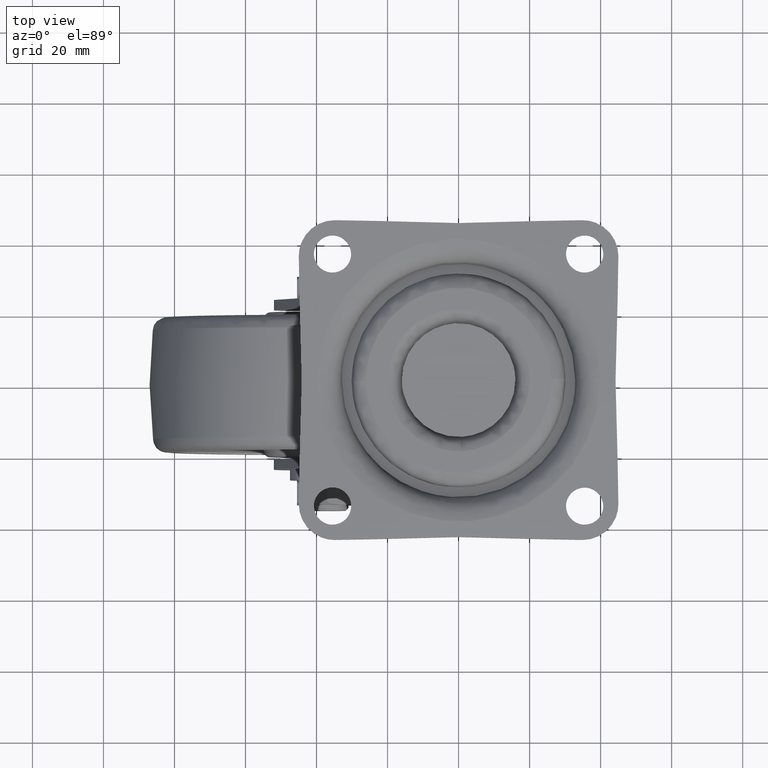
[diagram: clean part render]
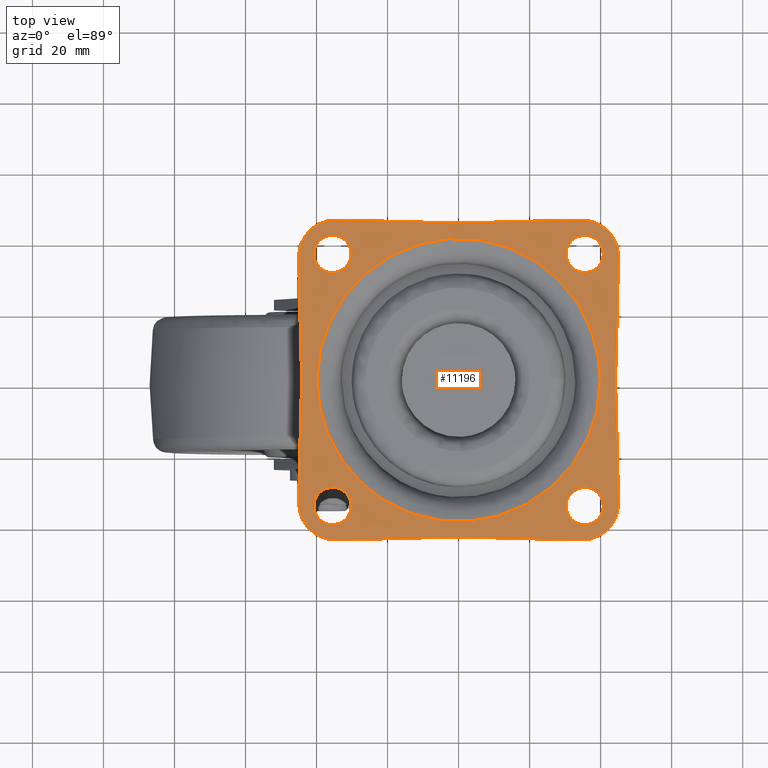
[diagram: same view with one face highlighted and labeled with its STEP entity id]
A machine part, top view. The second image highlights one B-rep face of the part: STEP entity #11196.
In plain terms, the highlighted face is a freeform B-spline surface patch.
Its self-contained STEP definition (entity closure, byte-faithful):
#8173=CARTESIAN_POINT('',(-35.820504832895317,30.259792308305830,-8.326673E-017));
#8174=VERTEX_POINT('',#8173);
#8175=CARTESIAN_POINT('',(-30.250000000000000,35.500000000000000,0.0));
#8176=VERTEX_POINT('',#8175);
#8177=CARTESIAN_POINT('',(-35.820504832895331,30.259792308305819,0.0));
#8178=CARTESIAN_POINT('',(-35.660402007486731,30.249999999999993,0.0));
#8179=CARTESIAN_POINT('',(-35.500000000000000,30.250000000000000,0.0));
#8180=CARTESIAN_POINT('',(-30.249999999999986,30.249999999999986,0.0));
#8181=CARTESIAN_POINT('',(-30.250000000000000,35.500000000000000,0.0));
#8189=(BOUNDED_CURVE()B_SPLINE_CURVE(2,(#8177,#8178,#8179,#8180,#8181),.UNSPECIFIED.,.F.,.U.)B_SPLINE_CURVE_WITH_KNOTS((3,2,3),(0.239332962230861,0.250000000000000,0.500000000000000),.UNSPECIFIED.)CURVE()GEOMETRIC_REPRESENTATION_ITEM()RATIONAL_B_SPLINE_CURVE((0.976072041649397,0.987502787890369,1.0,0.707106781186547,1.0))REPRESENTATION_ITEM(''));
#8190=EDGE_CURVE('',#8174,#8176,#8189,.T.);
#8192=CARTESIAN_POINT('',(-35.179495167104683,40.740207691694167,-8.326673E-017));
#8193=VERTEX_POINT('',#8192);
#8194=CARTESIAN_POINT('',(-30.250000000000000,35.500000000000000,0.0));
#8195=CARTESIAN_POINT('',(-30.249999999999993,40.438706850936384,0.0));
#8196=CARTESIAN_POINT('',(-35.179495167104683,40.740207691694160,0.0));
#8204=(BOUNDED_CURVE()B_SPLINE_CURVE(2,(#8194,#8195,#8196),.UNSPECIFIED.,.F.,.U.)B_SPLINE_CURVE_WITH_KNOTS((3,3),(0.500000000000000,0.739332962230861),.UNSPECIFIED.)CURVE()GEOMETRIC_REPRESENTATION_ITEM()RATIONAL_B_SPLINE_CURVE((1.0,0.719603993296179,0.976072041649397))REPRESENTATION_ITEM(''));
#8205=EDGE_CURVE('',#8176,#8193,#8204,.T.);
#8272=CARTESIAN_POINT('',(-40.749999999999993,35.500000000000000,0.0));
#8273=VERTEX_POINT('',#8272);
#8274=CARTESIAN_POINT('',(-40.749999999999993,35.500000000000000,0.0));
#8275=CARTESIAN_POINT('',(-40.749999999999986,30.561293149063609,0.0));
#8276=CARTESIAN_POINT('',(-35.820504832895331,30.259792308305830,0.0));
#8284=(BOUNDED_CURVE()B_SPLINE_CURVE(2,(#8274,#8275,#8276),.UNSPECIFIED.,.F.,.U.)B_SPLINE_CURVE_WITH_KNOTS((3,3),(0.0,0.239332962230861),.UNSPECIFIED.)CURVE()GEOMETRIC_REPRESENTATION_ITEM()RATIONAL_B_SPLINE_CURVE((1.0,0.719603993296179,0.976072041649397))REPRESENTATION_ITEM(''));
#8285=EDGE_CURVE('',#8273,#8174,#8284,.T.);
#8319=CARTESIAN_POINT('',(-35.179495167104676,40.740207691694160,0.0));
#8320=CARTESIAN_POINT('',(-35.339597992513276,40.750000000000000,0.0));
#8321=CARTESIAN_POINT('',(-35.500000000000000,40.749999999999993,0.0));
#8322=CARTESIAN_POINT('',(-40.749999999999986,40.749999999999986,0.0));
#8323=CARTESIAN_POINT('',(-40.749999999999993,35.500000000000000,0.0));
#8331=(BOUNDED_CURVE()B_SPLINE_CURVE(2,(#8319,#8320,#8321,#8322,#8323),.UNSPECIFIED.,.F.,.U.)B_SPLINE_CURVE_WITH_KNOTS((3,2,3),(0.739332962230861,0.750000000000000,1.0),.UNSPECIFIED.)CURVE()GEOMETRIC_REPRESENTATION_ITEM()RATIONAL_B_SPLINE_CURVE((0.976072041649397,0.987502787890369,1.0,0.707106781186547,1.0))REPRESENTATION_ITEM(''));
#8332=EDGE_CURVE('',#8193,#8273,#8331,.T.);
#8355=CARTESIAN_POINT('',(35.179495167104669,30.259792308305830,-8.326673E-017));
#8356=VERTEX_POINT('',#8355);
#8357=CARTESIAN_POINT('',(40.749999999999993,35.500000000000000,0.0));
#8358=VERTEX_POINT('',#8357);
#8359=CARTESIAN_POINT('',(35.179495167104676,30.259792308305826,0.0));
#8360=CARTESIAN_POINT('',(35.339597992513269,30.250000000000004,0.0));
#8361=CARTESIAN_POINT('',(35.500000000000000,30.250000000000000,0.0));
#8362=CARTESIAN_POINT('',(40.749999999999986,30.249999999999986,0.0));
#8363=CARTESIAN_POINT('',(40.749999999999993,35.500000000000000,0.0));
#8371=(BOUNDED_CURVE()B_SPLINE_CURVE(2,(#8359,#8360,#8361,#8362,#8363),.UNSPECIFIED.,.F.,.U.)B_SPLINE_CURVE_WITH_KNOTS((3,2,3),(0.239332962230861,0.250000000000000,0.500000000000000),.UNSPECIFIED.)CURVE()GEOMETRIC_REPRESENTATION_ITEM()RATIONAL_B_SPLINE_CURVE((0.976072041649396,0.987502787890368,1.0,0.707106781186547,1.0))REPRESENTATION_ITEM(''));
#8372=EDGE_CURVE('',#8356,#8358,#8371,.T.);
#8374=CARTESIAN_POINT('',(35.820504832895317,40.740207691694167,-8.326673E-017));
#8375=VERTEX_POINT('',#8374);
#8376=CARTESIAN_POINT('',(40.749999999999993,35.500000000000000,0.0));
#8377=CARTESIAN_POINT('',(40.749999999999986,40.438706850936384,0.0));
#8378=CARTESIAN_POINT('',(35.820504832895331,40.740207691694160,0.0));
#8386=(BOUNDED_CURVE()B_SPLINE_CURVE(2,(#8376,#8377,#8378),.UNSPECIFIED.,.F.,.U.)B_SPLINE_CURVE_WITH_KNOTS((3,3),(0.500000000000000,0.739332962230861),.UNSPECIFIED.)CURVE()GEOMETRIC_REPRESENTATION_ITEM()RATIONAL_B_SPLINE_CURVE((1.0,0.719603993296179,0.976072041649397))REPRESENTATION_ITEM(''));
#8387=EDGE_CURVE('',#8358,#8375,#8386,.T.);
#8454=CARTESIAN_POINT('',(30.250000000000000,35.500000000000000,0.0));
#8455=VERTEX_POINT('',#8454);
#8456=CARTESIAN_POINT('',(30.250000000000000,35.500000000000000,0.0));
#8457=CARTESIAN_POINT('',(30.249999999999982,30.561293149063612,0.0));
#8458=CARTESIAN_POINT('',(35.179495167104676,30.259792308305833,0.0));
#8466=(BOUNDED_CURVE()B_SPLINE_CURVE(2,(#8456,#8457,#8458),.UNSPECIFIED.,.F.,.U.)B_SPLINE_CURVE_WITH_KNOTS((3,3),(0.0,0.239332962230861),.UNSPECIFIED.)CURVE()GEOMETRIC_REPRESENTATION_ITEM()RATIONAL_B_SPLINE_CURVE((1.0,0.719603993296179,0.976072041649396))REPRESENTATION_ITEM(''));
#8467=EDGE_CURVE('',#8455,#8356,#8466,.T.);
#8501=CARTESIAN_POINT('',(35.820504832895331,40.740207691694160,0.0));
#8502=CARTESIAN_POINT('',(35.660402007486731,40.749999999999993,0.0));
#8503=CARTESIAN_POINT('',(35.500000000000000,40.749999999999993,0.0));
#8504=CARTESIAN_POINT('',(30.249999999999986,40.749999999999986,0.0));
#8505=CARTESIAN_POINT('',(30.250000000000000,35.500000000000000,0.0));
#8513=(BOUNDED_CURVE()B_SPLINE_CURVE(2,(#8501,#8502,#8503,#8504,#8505),.UNSPECIFIED.,.F.,.U.)B_SPLINE_CURVE_WITH_KNOTS((3,2,3),(0.739332962230861,0.750000000000000,1.0),.UNSPECIFIED.)CURVE()GEOMETRIC_REPRESENTATION_ITEM()RATIONAL_B_SPLINE_CURVE((0.976072041649397,0.987502787890369,1.0,0.707106781186547,1.0))REPRESENTATION_ITEM(''));
#8514=EDGE_CURVE('',#8375,#8455,#8513,.T.);
#8537=CARTESIAN_POINT('',(-35.820504832895317,-40.740207691694167,-8.326673E-017));
#8538=VERTEX_POINT('',#8537);
#8539=CARTESIAN_POINT('',(-30.250000000000000,-35.500000000000000,0.0));
#8540=VERTEX_POINT('',#8539);
#8541=CARTESIAN_POINT('',(-35.820504832895331,-40.740207691694160,0.0));
#8542=CARTESIAN_POINT('',(-35.660402007486717,-40.749999999999986,0.0));
#8543=CARTESIAN_POINT('',(-35.500000000000000,-40.749999999999993,0.0));
#8544=CARTESIAN_POINT('',(-30.249999999999986,-40.749999999999986,0.0));
#8545=CARTESIAN_POINT('',(-30.250000000000000,-35.500000000000000,0.0));
#8553=(BOUNDED_CURVE()B_SPLINE_CURVE(2,(#8541,#8542,#8543,#8544,#8545),.UNSPECIFIED.,.F.,.U.)B_SPLINE_CURVE_WITH_KNOTS((3,2,3),(0.239332962230861,0.250000000000000,0.500000000000000),.UNSPECIFIED.)CURVE()GEOMETRIC_REPRESENTATION_ITEM()RATIONAL_B_SPLINE_CURVE((0.976072041649397,0.987502787890369,1.0,0.707106781186547,1.0))REPRESENTATION_ITEM(''));
#8554=EDGE_CURVE('',#8538,#8540,#8553,.T.);
#8556=CARTESIAN_POINT('',(-35.179495167104683,-30.259792308305830,-8.326673E-017));
#8557=VERTEX_POINT('',#8556);
#8558=CARTESIAN_POINT('',(-30.250000000000000,-35.500000000000000,0.0));
#8559=CARTESIAN_POINT('',(-30.249999999999993,-30.561293149063609,0.0));
#8560=CARTESIAN_POINT('',(-35.179495167104683,-30.259792308305830,0.0));
#8568=(BOUNDED_CURVE()B_SPLINE_CURVE(2,(#8558,#8559,#8560),.UNSPECIFIED.,.F.,.U.)B_SPLINE_CURVE_WITH_KNOTS((3,3),(0.500000000000000,0.739332962230861),.UNSPECIFIED.)CURVE()GEOMETRIC_REPRESENTATION_ITEM()RATIONAL_B_SPLINE_CURVE((1.0,0.719603993296179,0.976072041649397))REPRESENTATION_ITEM(''));
#8569=EDGE_CURVE('',#8540,#8557,#8568,.T.);
#8636=CARTESIAN_POINT('',(-40.749999999999993,-35.500000000000000,0.0));
#8637=VERTEX_POINT('',#8636);
#8638=CARTESIAN_POINT('',(-40.749999999999993,-35.500000000000000,0.0));
#8639=CARTESIAN_POINT('',(-40.749999999999986,-40.438706850936370,0.0));
#8640=CARTESIAN_POINT('',(-35.820504832895338,-40.740207691694167,0.0));
#8648=(BOUNDED_CURVE()B_SPLINE_CURVE(2,(#8638,#8639,#8640),.UNSPECIFIED.,.F.,.U.)B_SPLINE_CURVE_WITH_KNOTS((3,3),(0.0,0.239332962230861),.UNSPECIFIED.)CURVE()GEOMETRIC_REPRESENTATION_ITEM()RATIONAL_B_SPLINE_CURVE((1.0,0.719603993296179,0.976072041649396))REPRESENTATION_ITEM(''));
#8649=EDGE_CURVE('',#8637,#8538,#8648,.T.);
#8683=CARTESIAN_POINT('',(-35.179495167104676,-30.259792308305823,0.0));
#8684=CARTESIAN_POINT('',(-35.339597992513276,-30.250000000000000,0.0));
#8685=CARTESIAN_POINT('',(-35.500000000000000,-30.250000000000000,0.0));
#8686=CARTESIAN_POINT('',(-40.749999999999986,-30.249999999999986,0.0));
#8687=CARTESIAN_POINT('',(-40.749999999999993,-35.500000000000000,0.0));
#8695=(BOUNDED_CURVE()B_SPLINE_CURVE(2,(#8683,#8684,#8685,#8686,#8687),.UNSPECIFIED.,.F.,.U.)B_SPLINE_CURVE_WITH_KNOTS((3,2,3),(0.739332962230861,0.750000000000000,1.0),.UNSPECIFIED.)CURVE()GEOMETRIC_REPRESENTATION_ITEM()RATIONAL_B_SPLINE_CURVE((0.976072041649397,0.987502787890369,1.0,0.707106781186547,1.0))REPRESENTATION_ITEM(''));
#8696=EDGE_CURVE('',#8557,#8637,#8695,.T.);
#8719=CARTESIAN_POINT('',(35.179495167104669,-40.740207691694167,-8.326673E-017));
#8720=VERTEX_POINT('',#8719);
#8721=CARTESIAN_POINT('',(40.749999999999993,-35.500000000000000,0.0));
#8722=VERTEX_POINT('',#8721);
#8723=CARTESIAN_POINT('',(35.179495167104655,-40.740207691694167,0.0));
#8724=CARTESIAN_POINT('',(35.339597992513262,-40.749999999999986,0.0));
#8725=CARTESIAN_POINT('',(35.500000000000000,-40.749999999999993,0.0));
#8726=CARTESIAN_POINT('',(40.749999999999986,-40.749999999999986,0.0));
#8727=CARTESIAN_POINT('',(40.749999999999993,-35.500000000000000,0.0));
#8735=(BOUNDED_CURVE()B_SPLINE_CURVE(2,(#8723,#8724,#8725,#8726,#8727),.UNSPECIFIED.,.F.,.U.)B_SPLINE_CURVE_WITH_KNOTS((3,2,3),(0.239332962230861,0.250000000000000,0.500000000000000),.UNSPECIFIED.)CURVE()GEOMETRIC_REPRESENTATION_ITEM()RATIONAL_B_SPLINE_CURVE((0.976072041649396,0.987502787890369,1.0,0.707106781186547,1.0))REPRESENTATION_ITEM(''));
#8736=EDGE_CURVE('',#8720,#8722,#8735,.T.);
#8738=CARTESIAN_POINT('',(35.820504832895317,-30.259792308305830,-8.326673E-017));
#8739=VERTEX_POINT('',#8738);
#8740=CARTESIAN_POINT('',(40.749999999999993,-35.500000000000000,0.0));
#8741=CARTESIAN_POINT('',(40.749999999999986,-30.561293149063609,0.0));
#8742=CARTESIAN_POINT('',(35.820504832895331,-30.259792308305830,0.0));
#8750=(BOUNDED_CURVE()B_SPLINE_CURVE(2,(#8740,#8741,#8742),.UNSPECIFIED.,.F.,.U.)B_SPLINE_CURVE_WITH_KNOTS((3,3),(0.500000000000000,0.739332962230861),.UNSPECIFIED.)CURVE()GEOMETRIC_REPRESENTATION_ITEM()RATIONAL_B_SPLINE_CURVE((1.0,0.719603993296179,0.976072041649397))REPRESENTATION_ITEM(''));
#8751=EDGE_CURVE('',#8722,#8739,#8750,.T.);
#8818=CARTESIAN_POINT('',(30.250000000000000,-35.500000000000000,0.0));
#8819=VERTEX_POINT('',#8818);
#8820=CARTESIAN_POINT('',(30.250000000000000,-35.500000000000000,0.0));
#8821=CARTESIAN_POINT('',(30.249999999999982,-40.438706850936370,0.0));
#8822=CARTESIAN_POINT('',(35.179495167104669,-40.740207691694167,0.0));
#8830=(BOUNDED_CURVE()B_SPLINE_CURVE(2,(#8820,#8821,#8822),.UNSPECIFIED.,.F.,.U.)B_SPLINE_CURVE_WITH_KNOTS((3,3),(0.0,0.239332962230861),.UNSPECIFIED.)CURVE()GEOMETRIC_REPRESENTATION_ITEM()RATIONAL_B_SPLINE_CURVE((1.0,0.719603993296179,0.976072041649396))REPRESENTATION_ITEM(''));
#8831=EDGE_CURVE('',#8819,#8720,#8830,.T.);
#8865=CARTESIAN_POINT('',(35.820504832895331,-30.259792308305830,0.0));
#8866=CARTESIAN_POINT('',(35.660402007486717,-30.250000000000004,0.0));
#8867=CARTESIAN_POINT('',(35.500000000000000,-30.250000000000000,0.0));
#8868=CARTESIAN_POINT('',(30.249999999999986,-30.249999999999986,0.0));
#8869=CARTESIAN_POINT('',(30.250000000000000,-35.500000000000000,0.0));
#8877=(BOUNDED_CURVE()B_SPLINE_CURVE(2,(#8865,#8866,#8867,#8868,#8869),.UNSPECIFIED.,.F.,.U.)B_SPLINE_CURVE_WITH_KNOTS((3,2,3),(0.739332962230861,0.750000000000000,1.0),.UNSPECIFIED.)CURVE()GEOMETRIC_REPRESENTATION_ITEM()RATIONAL_B_SPLINE_CURVE((0.976072041649397,0.987502787890369,1.0,0.707106781186547,1.0))REPRESENTATION_ITEM(''));
#8878=EDGE_CURVE('',#8739,#8819,#8877,.T.);
#10442=CARTESIAN_POINT('',(-22.568438371059951,44.780491321962550,0.0));
#10443=VERTEX_POINT('',#10442);
#10444=CARTESIAN_POINT('',(22.568478716295200,44.780493398808453,0.0));
#10445=VERTEX_POINT('',#10444);
#10446=CARTESIAN_POINT('',(-22.568438371059951,44.780491321962550,0.0));
#10447=CARTESIAN_POINT('',(0.000020226072639,43.618739034718402,0.0));
#10448=CARTESIAN_POINT('',(22.568478716295271,44.780493398808566,0.0));
#10456=(BOUNDED_CURVE()B_SPLINE_CURVE(2,(#10446,#10447,#10448),.UNSPECIFIED.,.F.,.U.)CURVE()GEOMETRIC_REPRESENTATION_ITEM()QUASI_UNIFORM_CURVE()RATIONAL_B_SPLINE_CURVE((1.0,0.998677693939897,1.0))REPRESENTATION_ITEM(''));
#10457=EDGE_CURVE('',#10443,#10445,#10456,.T.);
#10487=CARTESIAN_POINT('',(34.911363045098099,45.000030150011099,0.0));
#10488=VERTEX_POINT('',#10487);
#10489=CARTESIAN_POINT('',(34.911363045098099,45.000030150011099,0.0));
#10490=CARTESIAN_POINT('',(28.736937665468936,45.057985311737355,0.0));
#10491=CARTESIAN_POINT('',(22.568478716295321,44.780493398808460,0.0));
#10499=(BOUNDED_CURVE()B_SPLINE_CURVE(2,(#10489,#10490,#10491),.UNSPECIFIED.,.F.,.U.)CURVE()GEOMETRIC_REPRESENTATION_ITEM()QUASI_UNIFORM_CURVE()RATIONAL_B_SPLINE_CURVE((1.0,0.999630899864189,1.0))REPRESENTATION_ITEM(''));
#10500=EDGE_CURVE('',#10488,#10445,#10499,.T.);
#10526=CARTESIAN_POINT('',(45.000028999266803,34.911485639506601,0.0));
#10527=VERTEX_POINT('',#10526);
#10528=CARTESIAN_POINT('',(45.000028999266767,34.911485639506601,0.0));
#10529=CARTESIAN_POINT('',(44.999907361227322,45.000029954902516,0.0));
#10530=CARTESIAN_POINT('',(34.911363045098099,45.000029999999981,0.0));
#10538=(BOUNDED_CURVE()B_SPLINE_CURVE(2,(#10528,#10529,#10530),.UNSPECIFIED.,.F.,.U.)CURVE()GEOMETRIC_REPRESENTATION_ITEM()QUASI_UNIFORM_CURVE()RATIONAL_B_SPLINE_CURVE((1.0,0.707111045563504,1.0))REPRESENTATION_ITEM(''));
#10539=EDGE_CURVE('',#10527,#10488,#10538,.T.);
#10565=CARTESIAN_POINT('',(44.780491658686650,22.568440034628999,0.0));
#10566=VERTEX_POINT('',#10565);
#10567=CARTESIAN_POINT('',(44.780491658686643,22.568440034628971,0.0));
#10568=CARTESIAN_POINT('',(45.057988250459474,28.736979574832290,0.0));
#10569=CARTESIAN_POINT('',(45.000028999267343,34.911485639506523,0.0));
#10577=(BOUNDED_CURVE()B_SPLINE_CURVE(2,(#10567,#10568,#10569),.UNSPECIFIED.,.F.,.U.)CURVE()GEOMETRIC_REPRESENTATION_ITEM()QUASI_UNIFORM_CURVE()RATIONAL_B_SPLINE_CURVE((1.0,0.999630890219208,1.0))REPRESENTATION_ITEM(''));
#10578=EDGE_CURVE('',#10566,#10527,#10577,.T.);
#10604=CARTESIAN_POINT('',(44.780491321962650,-22.568438371059699,0.0));
#10605=VERTEX_POINT('',#10604);
#10606=CARTESIAN_POINT('',(44.780491658686650,22.568440034628999,0.0));
#10607=CARTESIAN_POINT('',(43.618740032628445,0.000000840451123,0.0));
#10608=CARTESIAN_POINT('',(44.780491321962657,-22.568438371059660,0.0));
#10616=(BOUNDED_CURVE()B_SPLINE_CURVE(2,(#10606,#10607,#10608),.UNSPECIFIED.,.F.,.U.)CURVE()GEOMETRIC_REPRESENTATION_ITEM()QUASI_UNIFORM_CURVE()RATIONAL_B_SPLINE_CURVE((1.0,0.998677696207034,1.0))REPRESENTATION_ITEM(''));
#10617=EDGE_CURVE('',#10566,#10605,#10616,.T.);
#10643=CARTESIAN_POINT('',(45.000030150011298,-34.911363045097751,0.0));
#10644=VERTEX_POINT('',#10643);
#10645=CARTESIAN_POINT('',(45.000030150011362,-34.911363045097723,0.0));
#10646=CARTESIAN_POINT('',(45.057985501462475,-28.736917452536485,0.0));
#10647=CARTESIAN_POINT('',(44.780491583320732,-22.568438359302359,0.0));
#10655=(BOUNDED_CURVE()B_SPLINE_CURVE(2,(#10645,#10646,#10647),.UNSPECIFIED.,.F.,.U.)CURVE()GEOMETRIC_REPRESENTATION_ITEM()QUASI_UNIFORM_CURVE()RATIONAL_B_SPLINE_CURVE((1.0,0.999630897448910,1.0))REPRESENTATION_ITEM(''));
#10656=EDGE_CURVE('',#10644,#10605,#10655,.T.);
#10682=CARTESIAN_POINT('',(34.911485639506701,-45.000028999266803,0.0));
#10683=VERTEX_POINT('',#10682);
#10684=CARTESIAN_POINT('',(34.911485639506701,-45.000028999266767,0.0));
#10685=CARTESIAN_POINT('',(45.000029954902956,-44.999907361227322,0.0));
#10686=CARTESIAN_POINT('',(45.000030000000081,-34.911363045097751,0.0));
#10694=(BOUNDED_CURVE()B_SPLINE_CURVE(2,(#10684,#10685,#10686),.UNSPECIFIED.,.F.,.U.)CURVE()GEOMETRIC_REPRESENTATION_ITEM()QUASI_UNIFORM_CURVE()RATIONAL_B_SPLINE_CURVE((1.0,0.707111045563492,1.0))REPRESENTATION_ITEM(''));
#10695=EDGE_CURVE('',#10683,#10644,#10694,.T.);
#10721=CARTESIAN_POINT('',(22.568478716295200,-44.780493398808453,0.0));
#10722=VERTEX_POINT('',#10721);
#10723=CARTESIAN_POINT('',(22.568478716295221,-44.780493398808439,0.0));
#10724=CARTESIAN_POINT('',(28.736998948672429,-45.057988068599869,0.0));
#10725=CARTESIAN_POINT('',(34.911485639506587,-45.000028999267343,0.0));
#10733=(BOUNDED_CURVE()B_SPLINE_CURVE(2,(#10723,#10724,#10725),.UNSPECIFIED.,.F.,.U.)CURVE()GEOMETRIC_REPRESENTATION_ITEM()QUASI_UNIFORM_CURVE()RATIONAL_B_SPLINE_CURVE((1.0,0.999630892534245,1.0))REPRESENTATION_ITEM(''));
#10734=EDGE_CURVE('',#10722,#10683,#10733,.T.);
#10760=CARTESIAN_POINT('',(-22.568438371060299,-44.780491321962650,0.0));
#10761=VERTEX_POINT('',#10760);
#10762=CARTESIAN_POINT('',(22.568478716295200,-44.780493398808453,0.0));
#10763=CARTESIAN_POINT('',(0.000020226073122,-43.618739034718409,0.0));
#10764=CARTESIAN_POINT('',(-22.568438371060079,-44.780491321962707,0.0));
#10772=(BOUNDED_CURVE()B_SPLINE_CURVE(2,(#10762,#10763,#10764),.UNSPECIFIED.,.F.,.U.)CURVE()GEOMETRIC_REPRESENTATION_ITEM()QUASI_UNIFORM_CURVE()RATIONAL_B_SPLINE_CURVE((1.0,0.998677693939897,1.0))REPRESENTATION_ITEM(''));
#10773=EDGE_CURVE('',#10722,#10761,#10772,.T.);
#10799=CARTESIAN_POINT('',(-34.911485639506701,-45.000028999267307,0.0));
#10800=VERTEX_POINT('',#10799);
#10801=CARTESIAN_POINT('',(-34.911485639506672,-45.000028999267343,0.0));
#10802=CARTESIAN_POINT('',(-28.736978735739843,-45.057988258335932,0.0));
#10803=CARTESIAN_POINT('',(-22.568438359302789,-44.780491583320760,0.0));
#10811=(BOUNDED_CURVE()B_SPLINE_CURVE(2,(#10801,#10802,#10803),.UNSPECIFIED.,.F.,.U.)CURVE()GEOMETRIC_REPRESENTATION_ITEM()QUASI_UNIFORM_CURVE()RATIONAL_B_SPLINE_CURVE((1.0,0.999630890118942,1.0))REPRESENTATION_ITEM(''));
#10812=EDGE_CURVE('',#10800,#10761,#10811,.T.);
#10838=CARTESIAN_POINT('',(-45.000030000000002,-34.911363000000101,0.0));
#10839=VERTEX_POINT('',#10838);
#10840=CARTESIAN_POINT('',(-45.000030000000031,-34.911363000000101,0.0));
#10841=CARTESIAN_POINT('',(-45.000030000000031,-44.999907361226732,0.0));
#10842=CARTESIAN_POINT('',(-34.911485639506687,-45.000028999266767,0.0));
#10850=(BOUNDED_CURVE()B_SPLINE_CURVE(2,(#10840,#10841,#10842),.UNSPECIFIED.,.F.,.U.)CURVE()GEOMETRIC_REPRESENTATION_ITEM()QUASI_UNIFORM_CURVE()RATIONAL_B_SPLINE_CURVE((1.0,0.707111043983073,1.0))REPRESENTATION_ITEM(''));
#10851=EDGE_CURVE('',#10839,#10800,#10850,.T.);
#10877=CARTESIAN_POINT('',(-44.780491658686650,-22.568440034629049,0.0));
#10878=VERTEX_POINT('',#10877);
#10879=CARTESIAN_POINT('',(-44.780491658686643,-22.568440034629049,0.0));
#10880=CARTESIAN_POINT('',(-45.057985492604097,-28.736918269790980,0.0));
#10881=CARTESIAN_POINT('',(-45.000030150421402,-34.911363001411992,0.0));
#10889=(BOUNDED_CURVE()B_SPLINE_CURVE(2,(#10879,#10880,#10881),.UNSPECIFIED.,.F.,.U.)CURVE()GEOMETRIC_REPRESENTATION_ITEM()QUASI_UNIFORM_CURVE()RATIONAL_B_SPLINE_CURVE((1.0,0.999630897551787,1.0))REPRESENTATION_ITEM(''));
#10890=EDGE_CURVE('',#10878,#10839,#10889,.T.);
#10916=CARTESIAN_POINT('',(-44.780491321962650,22.568438371060150,0.0));
#10917=VERTEX_POINT('',#10916);
#10918=CARTESIAN_POINT('',(-44.780491658686650,-22.568440034629049,0.0));
#10919=CARTESIAN_POINT('',(-43.618740032628445,-0.000000840451363,0.0));
#10920=CARTESIAN_POINT('',(-44.780491321962707,22.568438371060111,0.0));
#10928=(BOUNDED_CURVE()B_SPLINE_CURVE(2,(#10918,#10919,#10920),.UNSPECIFIED.,.F.,.U.)CURVE()GEOMETRIC_REPRESENTATION_ITEM()QUASI_UNIFORM_CURVE()RATIONAL_B_SPLINE_CURVE((1.0,0.998677696207034,1.0))REPRESENTATION_ITEM(''));
#10929=EDGE_CURVE('',#10878,#10917,#10928,.T.);
#10955=CARTESIAN_POINT('',(-45.000028999267307,34.911485639506601,0.0));
#10956=VERTEX_POINT('',#10955);
#10957=CARTESIAN_POINT('',(-45.000028999267343,34.911485639506601,0.0));
#10958=CARTESIAN_POINT('',(-45.057988258335932,28.736978735739829,0.0));
#10959=CARTESIAN_POINT('',(-44.780491583320760,22.568438359302728,0.0));
#10967=(BOUNDED_CURVE()B_SPLINE_CURVE(2,(#10957,#10958,#10959),.UNSPECIFIED.,.F.,.U.)CURVE()GEOMETRIC_REPRESENTATION_ITEM()QUASI_UNIFORM_CURVE()RATIONAL_B_SPLINE_CURVE((1.0,0.999630890118943,1.0))REPRESENTATION_ITEM(''));
#10968=EDGE_CURVE('',#10956,#10917,#10967,.T.);
#10994=CARTESIAN_POINT('',(-34.911363000000101,45.000030000000002,0.0));
#10995=VERTEX_POINT('',#10994);
#10996=CARTESIAN_POINT('',(-34.911363000000101,45.000029999999981,0.0));
#10997=CARTESIAN_POINT('',(-44.999907361226782,45.000029999999981,0.0));
#10998=CARTESIAN_POINT('',(-45.000028999266767,34.911485639506601,0.0));
#11006=(BOUNDED_CURVE()B_SPLINE_CURVE(2,(#10996,#10997,#10998),.UNSPECIFIED.,.F.,.U.)CURVE()GEOMETRIC_REPRESENTATION_ITEM()QUASI_UNIFORM_CURVE()RATIONAL_B_SPLINE_CURVE((1.0,0.707111043983071,1.0))REPRESENTATION_ITEM(''));
#11007=EDGE_CURVE('',#10995,#10956,#11006,.T.);
#11033=CARTESIAN_POINT('',(-22.568438371059951,44.780491321962550,0.0));
#11034=CARTESIAN_POINT('',(-28.736917430698064,45.057985500480100,0.0));
#11035=CARTESIAN_POINT('',(-34.911363001411956,45.000030150421402,0.0));
#11043=(BOUNDED_CURVE()B_SPLINE_CURVE(2,(#11033,#11034,#11035),.UNSPECIFIED.,.F.,.U.)CURVE()GEOMETRIC_REPRESENTATION_ITEM()QUASI_UNIFORM_CURVE()RATIONAL_B_SPLINE_CURVE((1.0,0.999630897451522,1.0))REPRESENTATION_ITEM(''));
#11044=EDGE_CURVE('',#10443,#10995,#11043,.T.);
#11052=CARTESIAN_POINT('',(-49.506265960460262,49.506265948181380,0.0));
#11053=CARTESIAN_POINT('',(49.506267570403239,49.506265948181380,0.0));
#11054=CARTESIAN_POINT('',(-49.506265960460262,-49.506267434990647,0.0));
#11055=CARTESIAN_POINT('',(49.506267570403239,-49.506267434990647,0.0));
#11056=B_SPLINE_SURFACE_WITH_KNOTS('',1,1,((#11052,#11054),(#11053,#11055)),.UNSPECIFIED.,.F.,.F.,.U.,(2,2),(2,2),(0.0,99.012533530863493),(0.0,99.012533383172027),.UNSPECIFIED.);
#11057=ORIENTED_EDGE('',*,*,#11044,.T.);
#11058=ORIENTED_EDGE('',*,*,#11007,.T.);
#11059=ORIENTED_EDGE('',*,*,#10968,.T.);
#11060=ORIENTED_EDGE('',*,*,#10929,.F.);
#11061=ORIENTED_EDGE('',*,*,#10890,.T.);
#11062=ORIENTED_EDGE('',*,*,#10851,.T.);
#11063=ORIENTED_EDGE('',*,*,#10812,.T.);
#11064=ORIENTED_EDGE('',*,*,#10773,.F.);
#11065=ORIENTED_EDGE('',*,*,#10734,.T.);
#11066=ORIENTED_EDGE('',*,*,#10695,.T.);
#11067=ORIENTED_EDGE('',*,*,#10656,.T.);
#11068=ORIENTED_EDGE('',*,*,#10617,.F.);
#11069=ORIENTED_EDGE('',*,*,#10578,.T.);
#11070=ORIENTED_EDGE('',*,*,#10539,.T.);
#11071=ORIENTED_EDGE('',*,*,#10500,.T.);
#11072=ORIENTED_EDGE('',*,*,#10457,.F.);
#11073=EDGE_LOOP('',(#11057,#11058,#11059,#11060,#11061,#11062,#11063,#11064,#11065,#11066,#11067,#11068,#11069,#11070,#11071,#11072));
#11074=FACE_OUTER_BOUND('',#11073,.T.);
#11075=CARTESIAN_POINT('',(39.875000000000000,0.0,0.0));
#11076=VERTEX_POINT('',#11075);
#11077=CARTESIAN_POINT('',(-39.871851637493691,-0.501070840379880,-1.508212E-015));
#11078=VERTEX_POINT('',#11077);
#11079=CARTESIAN_POINT('',(39.875000000000000,0.0,0.0));
#11080=CARTESIAN_POINT('',(39.875160391600737,-2.193204511983172,-2.575800E-019));
#11081=CARTESIAN_POINT('',(39.559195404833623,-6.010958622998565,-6.686687E-018));
#11082=CARTESIAN_POINT('',(38.282015875779862,-11.562697038559000,-3.150009E-017));
#11083=CARTESIAN_POINT('',(36.572196446857284,-16.139646089795662,-6.437965E-017));
#11084=CARTESIAN_POINT('',(34.319590324022023,-20.469125037240801,-1.074948E-016));
#11085=CARTESIAN_POINT('',(31.455219117390850,-24.721486580605230,-1.621704E-016));
#11086=CARTESIAN_POINT('',(27.855255927324649,-28.717060039002408,-2.307268E-016));
#11087=CARTESIAN_POINT('',(23.299384126592258,-32.530048580472823,-3.173395E-016));
#11088=CARTESIAN_POINT('',(18.861161083352389,-35.271082647231133,-4.015997E-016));
#11089=CARTESIAN_POINT('',(13.510757147327940,-37.652735316174883,-5.030683E-016));
#11090=CARTESIAN_POINT('',(8.341422209703575,-39.146475508628257,-6.010070E-016));
#11091=CARTESIAN_POINT('',(2.854189018279900,-39.872474228900387,-7.048665E-016));
#11092=CARTESIAN_POINT('',(-1.620797566429512,-39.914229175568003,-7.895013E-016));
#11093=CARTESIAN_POINT('',(-5.668385593052476,-39.530369476785737,-8.660026E-016));
#11094=CARTESIAN_POINT('',(-9.342641772852616,-38.826471221672819,-9.354056E-016));
#11095=CARTESIAN_POINT('',(-13.401690662306670,-37.641683073934942,-1.012029E-015));
#11096=CARTESIAN_POINT('',(-17.911401538015770,-35.766864386420011,-1.097092E-015));
#11097=CARTESIAN_POINT('',(-22.124123077325351,-33.289904121783081,-1.176468E-015));
#11098=CARTESIAN_POINT('',(-26.006138729107189,-30.334511728081718,-1.249533E-015));
#11099=CARTESIAN_POINT('',(-29.249012348017210,-27.248055266729981,-1.310494E-015));
#11100=CARTESIAN_POINT('',(-32.296923353553019,-23.539031953042940,-1.367695E-015));
#11101=CARTESIAN_POINT('',(-35.070821812388658,-19.228221939742539,-1.419642E-015));
#11102=CARTESIAN_POINT('',(-37.071902705870663,-14.947752049768770,-1.456977E-015));
#11103=CARTESIAN_POINT('',(-38.597767020823127,-10.314228727010040,-1.485283E-015));
#11104=CARTESIAN_POINT('',(-39.570319648956591,-5.777641600183676,-1.503137E-015));
#11105=CARTESIAN_POINT('',(-39.849467026573599,-2.287999180887123,-1.508001E-015));
#11106=CARTESIAN_POINT('',(-39.871851637493691,-0.501070840379880,-1.508212E-015));
#11107=B_SPLINE_CURVE_WITH_KNOTS('',3,(#11079,#11080,#11081,#11082,#11083,#11084,#11085,#11086,#11087,#11088,#11089,#11090,#11091,#11092,#11093,#11094,#11095,#11096,#11097,#11098,#11099,#11100,#11101,#11102,#11103,#11104,#11105,#11106),.UNSPECIFIED.,.F.,.U.,(4,1,1,1,1,1,1,1,1,1,1,1,1,1,1,1,1,1,1,1,1,1,1,1,1,4),(0.000000076207101,6.579597547346410,11.453443367790410,17.058372872573941,21.201174086156811,26.075002911375250,32.410992113473647,37.284825052271842,43.864507133163173,48.007268825491813,54.830623578260777,59.948202024641297,64.578207601608113,68.233599766930539,72.132657777808873,75.788043594939268,80.905578482139504,86.754220512818890,90.409595950784762,95.527125868382569,100.157266236370300,104.787442151466190,110.879703012392500,114.291423737857000,119.408913727587600,124.770117198648900),.UNSPECIFIED.);
#11108=EDGE_CURVE('',#11076,#11078,#11107,.T.);
#11109=ORIENTED_EDGE('',*,*,#11108,.T.);
#11110=CARTESIAN_POINT('',(-39.875000000000000,0.0,0.0));
#11111=VERTEX_POINT('',#11110);
#11112=CARTESIAN_POINT('',(-39.871851637493691,-0.501070840379880,-1.508212E-015));
#11113=CARTESIAN_POINT('',(-39.874999999933465,-0.250545311192204,-7.541062E-016));
#11114=CARTESIAN_POINT('',(-39.875000000000000,0.0,0.0));
#11122=(BOUNDED_CURVE()B_SPLINE_CURVE(2,(#11112,#11113,#11114),.UNSPECIFIED.,.F.,.U.)B_SPLINE_CURVE_WITH_KNOTS((3,3),(0.997784295921583,1.0),.UNSPECIFIED.)CURVE()GEOMETRIC_REPRESENTATION_ITEM()RATIONAL_B_SPLINE_CURVE((0.994854295643679,0.997404141202138,1.0))REPRESENTATION_ITEM(''));
#11123=EDGE_CURVE('',#11078,#11111,#11122,.T.);
#11124=ORIENTED_EDGE('',*,*,#11123,.T.);
#11125=CARTESIAN_POINT('',(39.871851637493698,0.501070840379883,-1.508212E-015));
#11126=VERTEX_POINT('',#11125);
#11127=CARTESIAN_POINT('',(-39.875000000000000,0.0,0.0));
#11128=CARTESIAN_POINT('',(-39.875120108948273,2.030740354912879,-2.390366E-019));
#11129=CARTESIAN_POINT('',(-39.570297217845408,6.010980911026033,-6.476735E-018));
#11130=CARTESIAN_POINT('',(-38.292081252113178,11.567268230217890,-3.131028E-017));
#11131=CARTESIAN_POINT('',(-36.352378616947831,16.664354436914358,-6.859914E-017));
#11132=CARTESIAN_POINT('',(-34.109126577328787,20.819524208663118,-1.115167E-016));
#11133=CARTESIAN_POINT('',(-31.182482153300690,25.024181856794801,-1.673643E-016));
#11134=CARTESIAN_POINT('',(-28.073424605851962,28.474887170642241,-2.265721E-016));
#11135=CARTESIAN_POINT('',(-23.814429747279739,32.128883692226523,-3.075514E-016));
#11136=CARTESIAN_POINT('',(-19.444525694535500,34.977583438396657,-3.905324E-016));
#11137=CARTESIAN_POINT('',(-14.415649671386110,37.290040293955869,-4.859121E-016));
#11138=CARTESIAN_POINT('',(-9.836770341730913,38.735303979171917,-5.726785E-016));
#11139=CARTESIAN_POINT('',(-5.762090219635880,39.517293477819543,-6.498307E-016));
#11140=CARTESIAN_POINT('',(-1.068247636363250,39.964203007634893,-7.386526E-016));
#11141=CARTESIAN_POINT('',(3.738838004677131,39.832812180089597,-8.295475E-016));
#11142=CARTESIAN_POINT('',(8.792857443727035,38.976051455190223,-9.250260E-016));
#11143=CARTESIAN_POINT('',(13.486074467424050,37.637271377762069,-1.013624E-015));
#11144=CARTESIAN_POINT('',(17.756416891699381,35.815791557601791,-1.094167E-015));
#11145=CARTESIAN_POINT('',(21.626078639111761,33.572172619851820,-1.167083E-015));
#11146=CARTESIAN_POINT('',(25.331970940754971,30.925937198947491,-1.236853E-015));
#11147=CARTESIAN_POINT('',(28.933824133455929,27.621441506407059,-1.304578E-015));
#11148=CARTESIAN_POINT('',(32.408491076853032,23.419320252298789,-1.369791E-015));
#11149=CARTESIAN_POINT('',(35.535249366139951,18.461014330179658,-1.428334E-015));
#11150=CARTESIAN_POINT('',(37.938530858852609,12.834891655357771,-1.473116E-015));
#11151=CARTESIAN_POINT('',(39.478301024628152,6.588791899263214,-1.501493E-015));
#11152=CARTESIAN_POINT('',(39.845465734327632,2.612880345297060,-1.507964E-015));
#11153=CARTESIAN_POINT('',(39.871851637493698,0.501070840379883,-1.508212E-015));
#11154=B_SPLINE_CURVE_WITH_KNOTS('',3,(#11127,#11128,#11129,#11130,#11131,#11132,#11133,#11134,#11135,#11136,#11137,#11138,#11139,#11140,#11141,#11142,#11143,#11144,#11145,#11146,#11147,#11148,#11149,#11150,#11151,#11152,#11153),.UNSPECIFIED.,.F.,.U.,(4,1,1,1,1,1,1,1,1,1,1,1,1,1,1,1,1,1,1,1,1,1,1,1,4),(0.000000076251098,6.092212003228340,11.940833655678230,17.058372872604249,22.419629317882141,26.075002911400649,32.410992113496121,36.310070168181952,42.889768550598319,48.007268825509144,52.881102898157224,57.267579426377011,60.435608001328049,67.015126365423285,71.645322007089149,75.788043594944185,81.636686014261812,85.535759888498490,89.191137455098811,95.283430855450220,100.157266236367700,105.518504835963500,112.829283111116890,118.434213223190600,124.770117198648800),.UNSPECIFIED.);
#11155=EDGE_CURVE('',#11111,#11126,#11154,.T.);
#11156=ORIENTED_EDGE('',*,*,#11155,.T.);
#11157=CARTESIAN_POINT('',(39.871851637493698,0.501070840379883,-1.508212E-015));
#11158=CARTESIAN_POINT('',(39.874999999933472,0.250545311192205,-7.541062E-016));
#11159=CARTESIAN_POINT('',(39.875000000000000,0.0,0.0));
#11167=(BOUNDED_CURVE()B_SPLINE_CURVE(2,(#11157,#11158,#11159),.UNSPECIFIED.,.F.,.U.)B_SPLINE_CURVE_WITH_KNOTS((3,3),(0.497784295921583,0.500000000000000),.UNSPECIFIED.)CURVE()GEOMETRIC_REPRESENTATION_ITEM()RATIONAL_B_SPLINE_CURVE((0.994854295643679,0.997404141202138,1.0))REPRESENTATION_ITEM(''));
#11168=EDGE_CURVE('',#11126,#11076,#11167,.T.);
#11169=ORIENTED_EDGE('',*,*,#11168,.T.);
#11170=EDGE_LOOP('',(#11109,#11124,#11156,#11169));
#11171=FACE_BOUND('',#11170,.T.);
#11172=ORIENTED_EDGE('',*,*,#8751,.F.);
#11173=ORIENTED_EDGE('',*,*,#8736,.F.);
#11174=ORIENTED_EDGE('',*,*,#8831,.F.);
#11175=ORIENTED_EDGE('',*,*,#8878,.F.);
#11176=EDGE_LOOP('',(#11172,#11173,#11174,#11175));
#11177=FACE_BOUND('',#11176,.T.);
#11178=ORIENTED_EDGE('',*,*,#8569,.F.);
#11179=ORIENTED_EDGE('',*,*,#8554,.F.);
#11180=ORIENTED_EDGE('',*,*,#8649,.F.);
#11181=ORIENTED_EDGE('',*,*,#8696,.F.);
#11182=EDGE_LOOP('',(#11178,#11179,#11180,#11181));
#11183=FACE_BOUND('',#11182,.T.);
#11184=ORIENTED_EDGE('',*,*,#8387,.F.);
#11185=ORIENTED_EDGE('',*,*,#8372,.F.);
#11186=ORIENTED_EDGE('',*,*,#8467,.F.);
#11187=ORIENTED_EDGE('',*,*,#8514,.F.);
#11188=EDGE_LOOP('',(#11184,#11185,#11186,#11187));
#11189=FACE_BOUND('',#11188,.T.);
#11190=ORIENTED_EDGE('',*,*,#8205,.F.);
#11191=ORIENTED_EDGE('',*,*,#8190,.F.);
#11192=ORIENTED_EDGE('',*,*,#8285,.F.);
#11193=ORIENTED_EDGE('',*,*,#8332,.F.);
#11194=EDGE_LOOP('',(#11190,#11191,#11192,#11193));
#11195=FACE_BOUND('',#11194,.T.);
#11196=ADVANCED_FACE('',(#11074,#11171,#11177,#11183,#11189,#11195),#11056,.F.);